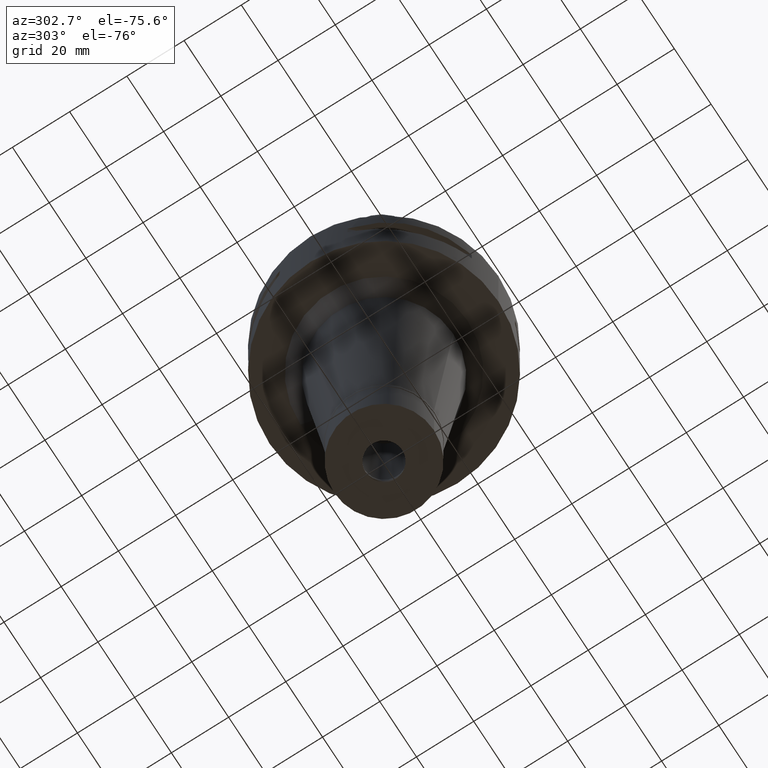
[diagram: clean part render]
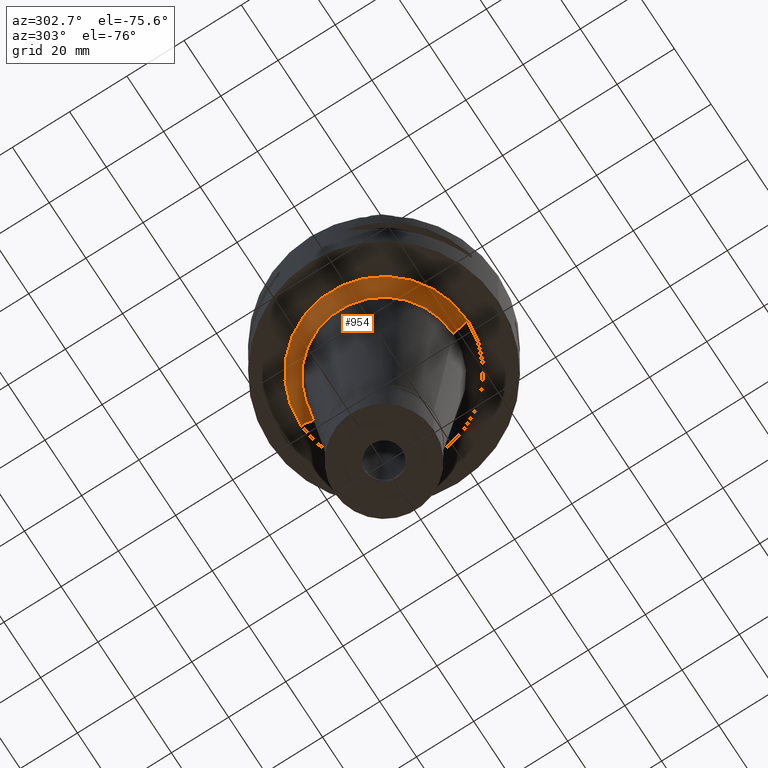
[diagram: same view with one face highlighted and labeled with its STEP entity id]
A machine part, auxiliary view. The second image highlights one B-rep face of the part: STEP entity #954.
In plain terms, the highlighted conical surface has half-angle 45 deg.
Its self-contained STEP definition (entity closure, byte-faithful):
#172 = EDGE_CURVE ( 'NONE', #1265, #3674, #1290, .T. ) ;
#313 = CARTESIAN_POINT ( 'NONE',  ( 0.0000000000000000000, 24.21038049243999879, -35.00000000000000000 ) ) ;
#322 = CARTESIAN_POINT ( 'NONE',  ( 0.0000000000000000000, 0.0000000000000000000, -32.50000000000000000 ) ) ;
#324 = CARTESIAN_POINT ( 'NONE',  ( 0.0000000000000000000, 0.0000000000000000000, -35.00000000000000000 ) ) ;
#718 = CARTESIAN_POINT ( 'NONE',  ( 0.0000000000000000000, -29.21038049243999879, -30.00000000000000000 ) ) ;
#794 = FACE_OUTER_BOUND ( 'NONE', #1217, .T. ) ;
#821 = ORIENTED_EDGE ( 'NONE', *, *, #2223, .T. ) ;
#954 = ADVANCED_FACE ( 'NONE', ( #794 ), #1954, .T. ) ;
#1115 = CARTESIAN_POINT ( 'NONE',  ( 0.0000000000000000000, 0.0000000000000000000, -30.00000000000000000 ) ) ;
#1142 = DIRECTION ( 'NONE',  ( 0.0000000000000000000, 0.0000000000000000000, -1.000000000000000000 ) ) ;
#1168 = CIRCLE ( 'NONE', #4067, 24.21038049243999879 ) ;
#1217 = EDGE_LOOP ( 'NONE', ( #4559, #2612, #3802, #821 ) ) ;
#1223 = DIRECTION ( 'NONE',  ( 0.0000000000000000000, 1.000000000000000000, 0.0000000000000000000 ) ) ;
#1265 = VERTEX_POINT ( 'NONE', #3253 ) ;
#1290 = CIRCLE ( 'NONE', #5106, 29.21038049243999879 ) ;
#1664 = LINE ( 'NONE', #3979, #3849 ) ;
#1740 = EDGE_CURVE ( 'NONE', #1265, #3951, #5066, .T. ) ;
#1954 = CONICAL_SURFACE ( 'NONE', #3278, 26.71038049244000234, 0.7853981633972997312 ) ;
#2223 = EDGE_CURVE ( 'NONE', #3674, #3998, #1664, .T. ) ;
#2365 = DIRECTION ( 'NONE',  ( 0.0000000000000000000, -1.000000000000000000, 0.0000000000000000000 ) ) ;
#2421 = DIRECTION ( 'NONE',  ( 0.0000000000000000000, -0.7071067811865969777, -0.7071067811864980568 ) ) ;
#2612 = ORIENTED_EDGE ( 'NONE', *, *, #1740, .F. ) ;
#2668 = DIRECTION ( 'NONE',  ( 0.0000000000000000000, 0.7071067811865969777, -0.7071067811864980568 ) ) ;
#3173 = EDGE_CURVE ( 'NONE', #3951, #3998, #1168, .T. ) ;
#3253 = CARTESIAN_POINT ( 'NONE',  ( 0.0000000000000000000, -29.21038049243999879, -30.00000000000000000 ) ) ;
#3278 = AXIS2_PLACEMENT_3D ( 'NONE', #322, #4273, #1223 ) ;
#3448 = VECTOR ( 'NONE', #2668, 1000.000000000000000 ) ;
#3490 = CARTESIAN_POINT ( 'NONE',  ( 0.0000000000000000000, -24.21038049243999879, -35.00000000000000000 ) ) ;
#3674 = VERTEX_POINT ( 'NONE', #4233 ) ;
#3802 = ORIENTED_EDGE ( 'NONE', *, *, #172, .T. ) ;
#3841 = DIRECTION ( 'NONE',  ( 0.0000000000000000000, 0.0000000000000000000, -1.000000000000000000 ) ) ;
#3849 = VECTOR ( 'NONE', #2421, 1000.000000000000000 ) ;
#3951 = VERTEX_POINT ( 'NONE', #3490 ) ;
#3979 = CARTESIAN_POINT ( 'NONE',  ( 0.0000000000000000000, 29.21038049243999879, -30.00000000000000000 ) ) ;
#3998 = VERTEX_POINT ( 'NONE', #313 ) ;
#4067 = AXIS2_PLACEMENT_3D ( 'NONE', #324, #1142, #2365 ) ;
#4233 = CARTESIAN_POINT ( 'NONE',  ( 0.0000000000000000000, 29.21038049243999879, -30.00000000000000000 ) ) ;
#4273 = DIRECTION ( 'NONE',  ( 0.0000000000000000000, 0.0000000000000000000, 1.000000000000000000 ) ) ;
#4559 = ORIENTED_EDGE ( 'NONE', *, *, #3173, .F. ) ;
#4730 = DIRECTION ( 'NONE',  ( 0.0000000000000000000, -1.000000000000000000, 0.0000000000000000000 ) ) ;
#5066 = LINE ( 'NONE', #718, #3448 ) ;
#5106 = AXIS2_PLACEMENT_3D ( 'NONE', #1115, #3841, #4730 ) ;